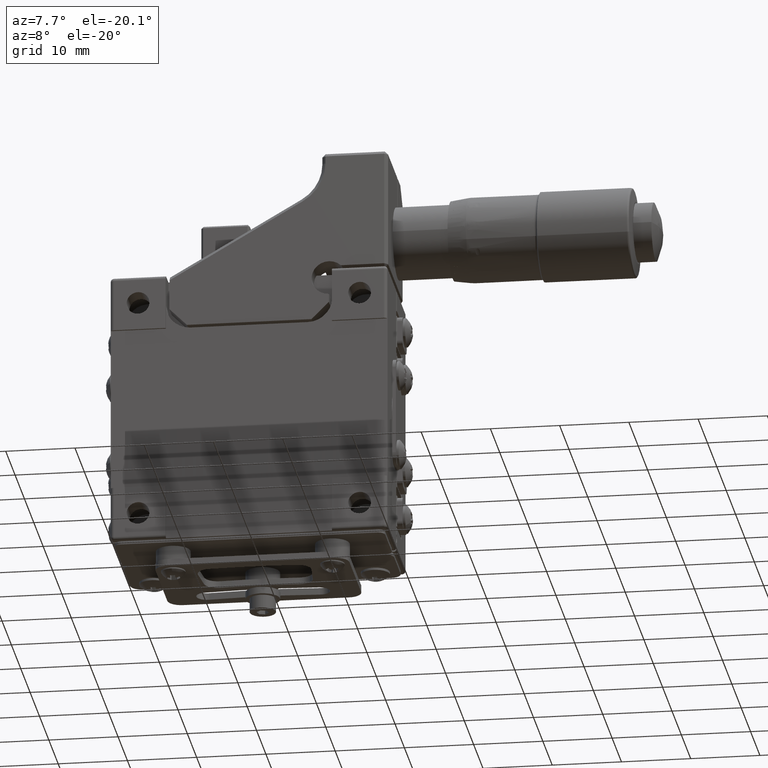
[diagram: clean part render]
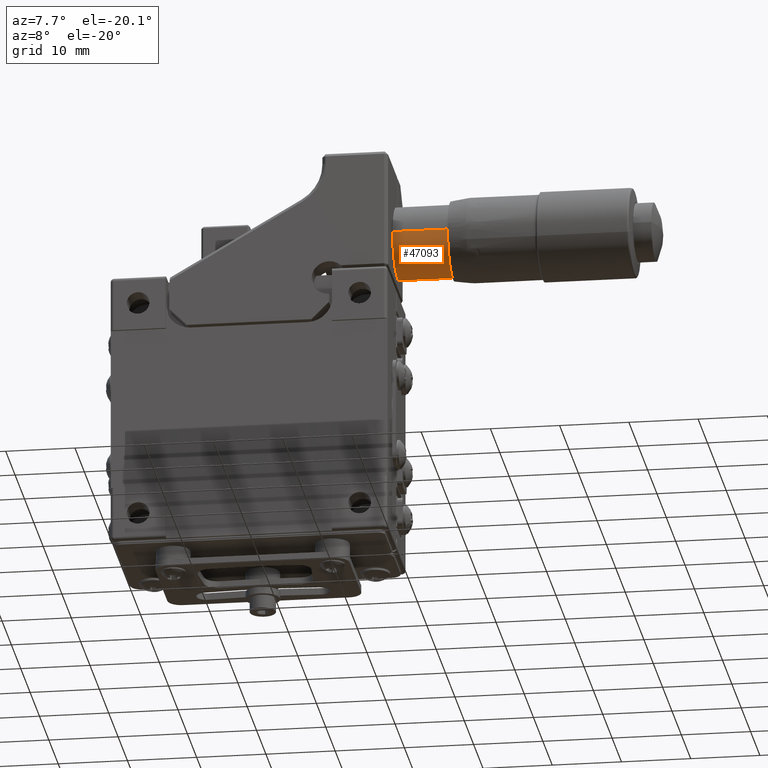
[diagram: same view with one face highlighted and labeled with its STEP entity id]
A machine part, auxiliary view. The second image highlights one B-rep face of the part: STEP entity #47093.
In plain terms, the highlighted cylindrical surface (partial cylindrical patch) has radius 5.25 mm, axis along (1, 0, -0).
Its self-contained STEP definition (entity closure, byte-faithful):
#33 = CIRCLE ( 'NONE', #4797, 5.250000000000000000 ) ;
#227 = EDGE_CURVE ( 'NONE', #22607, #8380, #13490, .T. ) ;
#265 = CARTESIAN_POINT ( 'NONE',  ( 23.45677601469919793, 5.289889676054009726, 23.37938096219945194 ) ) ;
#317 = ORIENTED_EDGE ( 'NONE', *, *, #37757, .T. ) ;
#339 = VECTOR ( 'NONE', #38864, 1000.000000000000000 ) ;
#519 = CARTESIAN_POINT ( 'NONE',  ( 23.78020444100825159, 5.563145795716739173, 23.65647861065389890 ) ) ;
#531 = CARTESIAN_POINT ( 'NONE',  ( 24.34558905639284987, 6.937145710750930228, 27.00175429356615098 ) ) ;
#553 = CARTESIAN_POINT ( 'NONE',  ( 18.06724558356724941, 5.717791847637850644, 23.83313230379275183 ) ) ;
#555 = CARTESIAN_POINT ( 'NONE',  ( 23.28896309203739889, 5.299037404333759582, 23.38801381120405054 ) ) ;
#587 = CARTESIAN_POINT ( 'NONE',  ( 23.52135692592975147, 5.735722256674949726, 23.85468142917499890 ) ) ;
#795 = CARTESIAN_POINT ( 'NONE',  ( 23.44558905639290103, 6.937145710750930228, 27.00175429356619716 ) ) ;
#801 = AXIS2_PLACEMENT_3D ( 'NONE', #26441, #41369, #18289 ) ;
#807 = CARTESIAN_POINT ( 'NONE',  ( 18.24369826059479749, 5.820301678860720251, 23.95962380368979794 ) ) ;
#863 = EDGE_CURVE ( 'NONE', #15339, #11574, #6073, .T. ) ;
#1003 = LINE ( 'NONE', #46460, #17576 ) ;
#1032 = CARTESIAN_POINT ( 'NONE',  ( 23.07953253322079945, 5.755740210196899298, 23.87890023980475007 ) ) ;
#1052 = CARTESIAN_POINT ( 'NONE',  ( 16.89558905639290032, 1.690954773869335126, 27.20170592217080241 ) ) ;
#1055 = CARTESIAN_POINT ( 'NONE',  ( 17.99101964955259803, 5.554083376403719186, 23.64659158344040080 ) ) ;
#1133 = CARTESIAN_POINT ( 'NONE',  ( 24.44558905639284774, 6.486708338444940658, 25.06552995847755128 ) ) ;
#1155 = DIRECTION ( 'NONE',  ( -1.000000000000000000, -1.782563718665835004E-29, 5.884182030513330453E-15 ) ) ;
#1180 = DIRECTION ( 'NONE',  ( 0.000000000000000000, 0.9992744641679190964, -0.03808602449610686697 ) ) ;
#1360 = FACE_BOUND ( 'NONE', #31370, .T. ) ;
#1427 = CARTESIAN_POINT ( 'NONE',  ( 17.99182837006539870, 5.274930975862210047, 23.36534971337189859 ) ) ;
#1504 = ORIENTED_EDGE ( 'NONE', *, *, #29681, .T. ) ;
#1569 = VECTOR ( 'NONE', #10331, 1000.000000000000000 ) ;
#1597 = CARTESIAN_POINT ( 'NONE',  ( 22.99558905639284845, 5.619620145561650126, 23.71916541310759641 ) ) ;
#1643 = CARTESIAN_POINT ( 'NONE',  ( 23.77694753595384114, 5.603925028483028647, 23.70145536615647686 ) ) ;
#1656 = CARTESIAN_POINT ( 'NONE',  ( 23.26121405639284845, 5.304444132582569083, 23.39313733876999990 ) ) ;
#1758 = CARTESIAN_POINT ( 'NONE',  ( 23.32587751793129982, 5.069086367334810106, 23.18290921952070249 ) ) ;
#1840 = CARTESIAN_POINT ( 'NONE',  ( 18.44558905639289748, 6.937145710750930228, 27.00175429356619716 ) ) ;
#2010 = DIRECTION ( 'NONE',  ( 1.000000000000000000, -2.239425046727875360E-16, -5.875646758148700168E-15 ) ) ;
#2048 = VERTEX_POINT ( 'NONE', #2123 ) ;
#2120 = CARTESIAN_POINT ( 'NONE',  ( 23.77944949786196815, 5.585008868517640224, 23.68035803692791319 ) ) ;
#2123 = CARTESIAN_POINT ( 'NONE',  ( 18.38140636408515149, 4.949885944044890351, 23.08565591906599934 ) ) ;
#2155 = CARTESIAN_POINT ( 'NONE',  ( 18.15634294792824832, 5.012485617296509766, 23.13598816888229948 ) ) ;
#2297 = ORIENTED_EDGE ( 'NONE', *, *, #37928, .T. ) ;
#2299 = DIRECTION ( 'NONE',  ( 1.000000000000000000, -2.239425046727875360E-16, -5.875646758148700168E-15 ) ) ;
#2387 = CARTESIAN_POINT ( 'NONE',  ( 23.33341211173975083, 5.758550306320059597, 23.88249404614334992 ) ) ;
#2402 = CARTESIAN_POINT ( 'NONE',  ( 18.72669171763260110, 5.687061938436359654, 23.79672079467419721 ) ) ;
#2792 = ORIENTED_EDGE ( 'NONE', *, *, #44413, .T. ) ;
#2882 = CARTESIAN_POINT ( 'NONE',  ( 18.79107458157634980, 5.506819399690189520, 23.59587209677784969 ) ) ;
#2889 = VECTOR ( 'NONE', #24756, 1000.000000000000000 ) ;
#2983 = CARTESIAN_POINT ( 'NONE',  ( 23.36169482562364763, 5.835818686895009932, 23.97950122003004836 ) ) ;
#3087 = CARTESIAN_POINT ( 'NONE',  ( 18.79104741692095004, 5.331719081647779745, 23.41919936998299789 ) ) ;
#3110 = CARTESIAN_POINT ( 'NONE',  ( 20.34558905639285342, 6.486708338444949540, 25.06552995847755128 ) ) ;
#3132 = CARTESIAN_POINT ( 'NONE',  ( 18.79271889287585040, 5.489365799607090146, 23.57753907683935068 ) ) ;
#3284 = VECTOR ( 'NONE', #22546, 1000.000000000000000 ) ;
#3307 = EDGE_CURVE ( 'NONE', #32852, #12943, #4102, .T. ) ;
#3329 = CARTESIAN_POINT ( 'NONE',  ( 23.55950975918075230, 5.408608004285869519, 23.49473502536619662 ) ) ;
#3372 = DIRECTION ( 'NONE',  ( -1.000000000000000000, 2.307564992963850028E-30, 5.947623346206200260E-15 ) ) ;
#3488 = CARTESIAN_POINT ( 'NONE',  ( 16.89658905639285180, 6.940716680430920604, 27.15170667802524918 ) ) ;
#3516 = CARTESIAN_POINT ( 'NONE',  ( 23.52857190186670167, 5.300615583610110093, 23.38949715309509969 ) ) ;
#3563 = CARTESIAN_POINT ( 'NONE',  ( 23.52754685517545141, 5.396053240556890174, 23.48218658178119966 ) ) ;
#3659 = EDGE_CURVE ( 'NONE', #45516, #47078, #5018, .T. ) ;
#3737 = ORIENTED_EDGE ( 'NONE', *, *, #46312, .T. ) ;
#3872 = AXIS2_PLACEMENT_3D ( 'NONE', #49202, #19376, #19618 ) ;
#4039 = EDGE_CURVE ( 'NONE', #27939, #17849, #37276, .T. ) ;
#4053 = VERTEX_POINT ( 'NONE', #23070 ) ;
#4102 = B_SPLINE_CURVE_WITH_KNOTS ( 'NONE', 3,
 ( #22942, #33898, #18513, #38115, #19245, #11794, #15511, #587, #8066, #30399, #34142, #10819, #19474, #23184, #45795, #41116, #7095, #15273, #4312 ),
 .UNSPECIFIED., .F., .F.,
 ( 4, 2, 2, 2, 2, 2, 1, 2, 2, 4 ),
 ( 0.000000000000000000, 0.06249999999999249906, 0.1249999999999850120, 0.2499999999999920064, 0.4999999999999899525, 0.7499999999999890088, 0.8124999999999860112, 0.8437500000000000000, 0.8750000000000000000, 1.000000000000000000 ),
 .UNSPECIFIED. ) ;
#4240 = CARTESIAN_POINT ( 'NONE',  ( 23.77763940290675393, 5.525179733464120169, 23.61539530819050015 ) ) ;
#4312 = CARTESIAN_POINT ( 'NONE',  ( 23.67251213331595139, 5.560060112899369855, 23.65311128830655107 ) ) ;
#4372 = EDGE_CURVE ( 'NONE', #19408, #38668, #18798, .T. ) ;
#4429 = ORIENTED_EDGE ( 'NONE', *, *, #9612, .T. ) ;
#4480 = CARTESIAN_POINT ( 'NONE',  ( 23.40256021023899891, 5.287493202660889402, 23.37712603279389967 ) ) ;
#4559 = CARTESIAN_POINT ( 'NONE',  ( 23.27101811025384848, 5.385727631877720079, 23.47193981979990340 ) ) ;
#4665 = CARTESIAN_POINT ( 'NONE',  ( 18.63494893333809799, 5.029091470839650135, 23.14954038271840275 ) ) ;
#4765 = CARTESIAN_POINT ( 'NONE',  ( 21.34558905639289961, 6.937145710750930228, 27.00175429356619716 ) ) ;
#4788 = DIRECTION ( 'NONE',  ( 1.000000000000000000, -2.239425046727875360E-16, -5.875646758148700168E-15 ) ) ;
#4797 = AXIS2_PLACEMENT_3D ( 'NONE', #6478, #48448, #29551 ) ;
#4852 = DIRECTION ( 'NONE',  ( 0.000000000000000000, -1.000000000000000000, 0.000000000000000000 ) ) ;
#4899 = CARTESIAN_POINT ( 'NONE',  ( 23.10328136408515221, 5.619620145561650126, 23.71916541310755022 ) ) ;
#4916 = CARTESIAN_POINT ( 'NONE',  ( 18.34326342323839754, 4.951149511358879707, 23.08665608867815067 ) ) ;
#5018 = LINE ( 'NONE', #4765, #38551 ) ;
#5084 = CARTESIAN_POINT ( 'NONE',  ( 23.15969162049540131, 5.278941527085650343, 23.36388739353439803 ) ) ;
#5136 = CARTESIAN_POINT ( 'NONE',  ( 23.32587751793129982, 5.069086367334810106, 23.18290921952070249 ) ) ;
#5155 = VERTEX_POINT ( 'NONE', #20123 ) ;
#5351 = ORIENTED_EDGE ( 'NONE', *, *, #27471, .F. ) ;
#5352 = FACE_BOUND ( 'NONE', #36145, .T. ) ;
#5397 = ORIENTED_EDGE ( 'NONE', *, *, #11442, .T. ) ;
#5415 = CARTESIAN_POINT ( 'NONE',  ( 17.98043980824084898, 5.391738008381330438, 23.47768609248910110 ) ) ;
#5421 = CARTESIAN_POINT ( 'NONE',  ( 18.67973535482265035, 5.070512391442050237, 23.18407989292239790 ) ) ;
#5589 = EDGE_LOOP ( 'NONE', ( #13391, #9751, #47807, #29669 ) ) ;
#5629 = CARTESIAN_POINT ( 'NONE',  ( 23.36169482562364763, 5.835818686895009932, 23.97950122003004836 ) ) ;
#5825 = LINE ( 'NONE', #1597, #339 ) ;
#5847 = CARTESIAN_POINT ( 'NONE',  ( 18.34558905639284987, 6.937145710750930228, 27.00175429356619716 ) ) ;
#5851 = CARTESIAN_POINT ( 'NONE',  ( 22.34558905639284632, 1.690954773869335126, 27.20170592217075267 ) ) ;
#5861 = EDGE_CURVE ( 'NONE', #18559, #6262, #10969, .T. ) ;
#5865 = AXIS2_PLACEMENT_3D ( 'NONE', #20441, #4788, #23654 ) ;
#5883 = CARTESIAN_POINT ( 'NONE',  ( 22.34558905639284632, 6.937145710750930228, 27.00175429356619716 ) ) ;
#5901 = CARTESIAN_POINT ( 'NONE',  ( 18.13134905936610153, 5.029977404075429703, 23.15034123009300160 ) ) ;
#6013 = DIRECTION ( 'NONE',  ( -1.000000000000000000, -1.782563718665835004E-29, 5.884182030513330453E-15 ) ) ;
#6034 = ORIENTED_EDGE ( 'NONE', *, *, #31582, .F. ) ;
#6073 = CIRCLE ( 'NONE', #6890, 5.250000000000000888 ) ;
#6139 = CARTESIAN_POINT ( 'NONE',  ( 18.73326914127765264, 5.677706815678059016, 23.78577632846729983 ) ) ;
#6262 = VERTEX_POINT ( 'NONE', #26822 ) ;
#6340 = CARTESIAN_POINT ( 'NONE',  ( 18.77946615261285146, 5.262396506522959427, 23.35367083740920080 ) ) ;
#6387 = CARTESIAN_POINT ( 'NONE',  ( 18.59615279022359857, 5.792394080578749715, 23.92439059890885034 ) ) ;
#6478 = CARTESIAN_POINT ( 'NONE',  ( 22.44558905639289748, 1.690954773869335126, 27.20170592217075267 ) ) ;
#6535 = ORIENTED_EDGE ( 'NONE', *, *, #4372, .T. ) ;
#6598 = VERTEX_POINT ( 'NONE', #47695 ) ;
#6644 = EDGE_LOOP ( 'NONE', ( #31465, #2297, #40890, #5351 ) ) ;
#6822 = CARTESIAN_POINT ( 'NONE',  ( 23.67251213331595139, 5.560060112899369855, 23.65311128830655107 ) ) ;
#6869 = CARTESIAN_POINT ( 'NONE',  ( 18.79558905639284916, 5.420071184044850554, 23.50627755737194846 ) ) ;
#6890 = AXIS2_PLACEMENT_3D ( 'NONE', #31922, #28445, #8845 ) ;
#6895 = CIRCLE ( 'NONE', #36247, 5.250000000000000000 ) ;
#7056 = CIRCLE ( 'NONE', #3872, 5.250000000000004441 ) ;
#7095 = CARTESIAN_POINT ( 'NONE',  ( 23.67017106141915050, 5.590068086584659923, 23.68607732298434954 ) ) ;
#7165 = CIRCLE ( 'NONE', #37293, 5.250000000000000000 ) ;
#7192 = EDGE_LOOP ( 'NONE', ( #9737, #21418, #29081, #48776 ) ) ;
#7417 = AXIS2_PLACEMENT_3D ( 'NONE', #34162, #26681, #38134 ) ;
#7498 = B_SPLINE_CURVE_WITH_KNOTS ( 'NONE', 3,
 ( #5136, #28477, #43131, #1656 ),
 .UNSPECIFIED., .F., .F.,
 ( 4, 4 ),
 ( 0.000000000000000000, 1.000000000000000000 ),
 .UNSPECIFIED. ) ;
#7499 = CARTESIAN_POINT ( 'NONE',  ( 23.76540507260534696, 5.480379353258279629, 23.56810850723585204 ) ) ;
#7538 = CARTESIAN_POINT ( 'NONE',  ( 18.38140636408520123, 5.835818686895009932, 23.97950122003004836 ) ) ;
#7747 = CARTESIAN_POINT ( 'NONE',  ( 23.41781671646059948, 5.287733781616739570, 23.37735226717385117 ) ) ;
#7937 = VECTOR ( 'NONE', #22268, 1000.000000000000000 ) ;
#7959 = LINE ( 'NONE', #22372, #14805 ) ;
#7991 = CARTESIAN_POINT ( 'NONE',  ( 23.73636563050564874, 5.427513880047809991, 23.51374053871964875 ) ) ;
#8066 = CARTESIAN_POINT ( 'NONE',  ( 23.55455627761135062, 5.721574142831560295, 23.83756220789814861 ) ) ;
#8377 = ORIENTED_EDGE ( 'NONE', *, *, #28513, .F. ) ;
#8380 = VERTEX_POINT ( 'NONE', #9841 ) ;
#8480 = ORIENTED_EDGE ( 'NONE', *, *, #39571, .T. ) ;
#8515 = VERTEX_POINT ( 'NONE', #48808 ) ;
#8554 = CARTESIAN_POINT ( 'NONE',  ( 23.36098206408059852, 5.376495994954619384, 23.46281756679924868 ) ) ;
#8616 = CARTESIAN_POINT ( 'NONE',  ( 23.69804367146982216, 5.735863186969532457, 23.85480111770216638 ) ) ;
#8653 = CARTESIAN_POINT ( 'NONE',  ( 17.98668238773064942, 5.309002002021870226, 23.39740765493554875 ) ) ;
#8660 = CARTESIAN_POINT ( 'NONE',  ( 18.55303231359435046, 4.981926728250019920, 23.11118453215449975 ) ) ;
#8776 = CARTESIAN_POINT ( 'NONE',  ( 20.34558905639285342, 6.937145710750930228, 27.00175429356615098 ) ) ;
#8845 = DIRECTION ( 'NONE',  ( 0.000000000000000000, 0.9999546488688688672, 0.009523665551529269038 ) ) ;
#8884 = ORIENTED_EDGE ( 'NONE', *, *, #29289, .T. ) ;
#8901 = CARTESIAN_POINT ( 'NONE',  ( 18.03670959010259978, 5.141584140932299540, 23.24497592652269873 ) ) ;
#9000 = CARTESIAN_POINT ( 'NONE',  ( 23.01522760397604728, 5.677772278705179865, 23.78583551321204936 ) ) ;
#9078 = FACE_BOUND ( 'NONE', #9306, .T. ) ;
#9106 = CARTESIAN_POINT ( 'NONE',  ( 23.76844957461390351, 5.636150263130284443, 23.73781754061384319 ) ) ;
#9120 = ORIENTED_EDGE ( 'NONE', *, *, #29457, .T. ) ;
#9127 = CARTESIAN_POINT ( 'NONE',  ( 19.44558905639285129, 6.486708338444940658, 25.06552995847760101 ) ) ;
#9220 = VERTEX_POINT ( 'NONE', #29846 ) ;
#9271 = CARTESIAN_POINT ( 'NONE',  ( 17.98585416595799913, 5.521370916630820247, 23.61135259567905109 ) ) ;
#9306 = EDGE_LOOP ( 'NONE', ( #317, #23424, #25515, #35150 ) ) ;
#9374 = CARTESIAN_POINT ( 'NONE',  ( 23.14137710432449779, 5.685710220525949765, 23.79515258192074967 ) ) ;
#9422 = VERTEX_POINT ( 'NONE', #26842 ) ;
#9612 = EDGE_CURVE ( 'NONE', #28670, #17849, #33, .T. ) ;
#9646 = CARTESIAN_POINT ( 'NONE',  ( 17.99797431945545156, 5.241168087542649623, 23.33389231324834867 ) ) ;
#9737 = ORIENTED_EDGE ( 'NONE', *, *, #22652, .F. ) ;
#9751 = ORIENTED_EDGE ( 'NONE', *, *, #15446, .F. ) ;
#9841 = CARTESIAN_POINT ( 'NONE',  ( 19.34558905639285342, 6.486708338444940658, 25.06552995847760101 ) ) ;
#9877 = CARTESIAN_POINT ( 'NONE',  ( 18.79309068520640125, 5.484651562133749714, 23.57260461165904886 ) ) ;
#9972 = CARTESIAN_POINT ( 'NONE',  ( 21.44558905639290103, 1.690954773869335126, 27.20170592217075267 ) ) ;
#10062 = CARTESIAN_POINT ( 'NONE',  ( 18.76866243877675089, 5.221752901497730193, 23.31628579314640248 ) ) ;
#10097 = CARTESIAN_POINT ( 'NONE',  ( 23.10877952375430056, 5.634730652595280276, 23.73627324775959835 ) ) ;
#10111 = CARTESIAN_POINT ( 'NONE',  ( 18.79489832927080073, 5.450364911648720501, 23.53705779128064890 ) ) ;
#10299 = CARTESIAN_POINT ( 'NONE',  ( 18.79558905639284916, 5.420071184044850554, 23.50627755737194846 ) ) ;
#10312 = CARTESIAN_POINT ( 'NONE',  ( 23.44157218277834787, 5.378967323543909274, 23.46525524827420028 ) ) ;
#10331 = DIRECTION ( 'NONE',  ( -1.000000000000000000, -1.782563718665835004E-29, 5.884182030513330453E-15 ) ) ;
#10388 = EDGE_CURVE ( 'NONE', #28670, #25449, #16310, .T. ) ;
#10681 = ORIENTED_EDGE ( 'NONE', *, *, #3659, .F. ) ;
#10791 = CARTESIAN_POINT ( 'NONE',  ( 23.67224531399750020, 5.552370442750300228, 23.64472708360050390 ) ) ;
#10819 = CARTESIAN_POINT ( 'NONE',  ( 23.65473570768559597, 5.632402840398870403, 23.73362733872725272 ) ) ;
#10837 = B_SPLINE_CURVE_WITH_KNOTS ( 'NONE', 3,
 ( #42311, #8554, #46039, #23181, #4559, #42816, #26910, #34864, #11790, #38849 ),
 .UNSPECIFIED., .F., .F.,
 ( 4, 1, 1, 2, 2, 4 ),
 ( 0.000000000000000000, 0.2499999999999960032, 0.3750000000000144884, 0.4375000000000000000, 0.4999999999999909517, 1.000000000000000000 ),
 .UNSPECIFIED. ) ;
#10867 = AXIS2_PLACEMENT_3D ( 'NONE', #37413, #3372, #18530 ) ;
#10969 = B_SPLINE_CURVE_WITH_KNOTS ( 'NONE', 3,
 ( #7538, #18968, #45519, #807, #30863, #34585, #15242, #15979, #30372, #553, #12017, #46011, #27131, #34835, #46264, #43284, #16725, #1055, #43534, #27633, #9271, #28625, #23912, #39815 ),
 .UNSPECIFIED., .F., .F.,
 ( 4, 2, 2, 2, 2, 1, 2, 2, 2, 2, 2, 1, 4 ),
 ( 0.000000000000000000, 0.1250000000000000000, 0.2500000000000000000, 0.3750000000000000000, 0.4375000000000074940, 0.5000000000000129896, 0.5625000000000179856, 0.6250000000000229816, 0.7500000000000229816, 0.7812500000000179856, 0.8125000000000129896, 0.8750000000000119904, 1.000000000000000000 ),
 .UNSPECIFIED. ) ;
#10975 = CARTESIAN_POINT ( 'NONE',  ( 21.44558905639285484, 6.486708338444949540, 25.06552995847750154 ) ) ;
#11086 = B_SPLINE_CURVE_WITH_KNOTS ( 'NONE', 3,
 ( #41999, #7747, #22399, #265, #37556, #11971, #41517, #3516, #30575, #48749, #45969, #18449, #7991, #33814, #34544, #7499, #23114, #27089, #38281, #4240, #29847, #42242 ),
 .UNSPECIFIED., .F., .F.,
 ( 4, 1, 2, 2, 2, 2, 2, 2, 1, 2, 2, 4 ),
 ( 0.000000000000000000, 0.06249999999996199568, 0.09374999999995201061, 0.1249999999999421990, 0.2499999999999329980, 0.4999999999999339972, 0.6249999999999340528, 0.7499999999999350520, 0.8124999999999430456, 0.8437499999999510392, 0.8749999999999580336, 1.000000000000000000 ),
 .UNSPECIFIED. ) ;
#11220 = CARTESIAN_POINT ( 'NONE',  ( 18.34558905639284987, 6.937145710750930228, 27.00175429356619716 ) ) ;
#11397 = CIRCLE ( 'NONE', #5865, 5.250000000000000000 ) ;
#11442 = EDGE_CURVE ( 'NONE', #41745, #40393, #7498, .T. ) ;
#11481 = CARTESIAN_POINT ( 'NONE',  ( 22.44558905639284774, 6.486708338444949540, 25.06552995847755128 ) ) ;
#11517 = CARTESIAN_POINT ( 'NONE',  ( 23.35142124693670240, 5.289643035506229829, 23.37914710156034914 ) ) ;
#11574 = VERTEX_POINT ( 'NONE', #40631 ) ;
#11608 = CARTESIAN_POINT ( 'NONE',  ( 23.73405059485439850, 5.069086367334810106, 23.18290921952064920 ) ) ;
#11624 = B_SPLINE_CURVE_WITH_KNOTS ( 'NONE', 3,
 ( #32220, #5415, #31976, #42657, #8653, #35204, #13366, #1427, #24022, #9646, #43152, #43651, #42912, #8901, #16594, #24770, #39927, #12874, #16843, #5901, #2155, #17331, #23778, #20065, #32467, #31728, #4916, #20311, #16337 ),
 .UNSPECIFIED., .F., .F.,
 ( 4, 2, 1, 1, 2, 2, 2, 1, 2, 2, 2, 2, 2, 2, 2, 4 ),
 ( 0.000000000000000000, 0.1249999999999726052, 0.1874999999999645006, 0.2187499999999575062, 0.2343749999999590050, 0.2499999999999610034, 0.3749999999999689693, 0.4374999999999739653, 0.4687499999999699685, 0.4999999999999659717, 0.6249999999999730216, 0.6874999999999790168, 0.7499999999999860112, 0.8750000000000000000, 0.9375000000000000000, 1.000000000000000000 ),
 .UNSPECIFIED. ) ;
#11790 = CARTESIAN_POINT ( 'NONE',  ( 23.16861416182144850, 5.406211787023529780, 23.49229434622470336 ) ) ;
#11794 = CARTESIAN_POINT ( 'NONE',  ( 23.44726634559129863, 5.753441172588590113, 23.87624094318305268 ) ) ;
#11949 = CARTESIAN_POINT ( 'NONE',  ( 23.44558905639290103, 6.106883144299340316, 24.36232630203689808 ) ) ;
#11971 = CARTESIAN_POINT ( 'NONE',  ( 23.47206117095209876, 5.291357144720800321, 23.38076308653859670 ) ) ;
#12017 = CARTESIAN_POINT ( 'NONE',  ( 18.05044602814275123, 5.698528273303800518, 23.81015913801834927 ) ) ;
#12060 = VERTEX_POINT ( 'NONE', #531 ) ;
#12249 = DIRECTION ( 'NONE',  ( -1.000000000000000000, 0.000000000000000000, 5.884182030513330453E-15 ) ) ;
#12293 = CARTESIAN_POINT ( 'NONE',  ( 23.11866597946979951, 5.419732759218230278, 23.50593607869055290 ) ) ;
#12357 = CARTESIAN_POINT ( 'NONE',  ( 20.44558905639285129, 6.486708338444940658, 25.06552995847755128 ) ) ;
#12524 = ORIENTED_EDGE ( 'NONE', *, *, #10388, .F. ) ;
#12632 = CARTESIAN_POINT ( 'NONE',  ( 18.45049505652580280, 4.954428476851679974, 23.08925606883044779 ) ) ;
#12703 = CARTESIAN_POINT ( 'NONE',  ( 16.89558905639290032, -3.559045226130664652, 27.20170592217075267 ) ) ;
#12874 = CARTESIAN_POINT ( 'NONE',  ( 18.08616175225260037, 5.070083199743869784, 23.18365955399514888 ) ) ;
#12943 = VERTEX_POINT ( 'NONE', #43018 ) ;
#12976 = CARTESIAN_POINT ( 'NONE',  ( 23.24872480063070057, 5.826416599739940416, 23.96743299280860029 ) ) ;
#13051 = FACE_BOUND ( 'NONE', #5589, .T. ) ;
#13077 = CARTESIAN_POINT ( 'NONE',  ( 23.48759408747753241, 5.835067125678773614, 23.97853445371584158 ) ) ;
#13202 = ORIENTED_EDGE ( 'NONE', *, *, #29836, .T. ) ;
#13303 = FACE_BOUND ( 'NONE', #18136, .T. ) ;
#13366 = CARTESIAN_POINT ( 'NONE',  ( 17.99089543740879904, 5.280468734635469730, 23.37053065827250364 ) ) ;
#13391 = ORIENTED_EDGE ( 'NONE', *, *, #46970, .F. ) ;
#13460 = DIRECTION ( 'NONE',  ( 0.000000000000000000, 0.9992744641679190964, -0.03808602449610686697 ) ) ;
#13470 = CARTESIAN_POINT ( 'NONE',  ( 23.33606302679380207, 5.835506975621029824, 23.97910025208099682 ) ) ;
#13490 = LINE ( 'NONE', #21885, #28526 ) ;
#13522 = DIRECTION ( 'NONE',  ( 1.000000000000000000, 1.782563718665835004E-29, -5.884182030513330453E-15 ) ) ;
#13643 = EDGE_CURVE ( 'NONE', #46239, #48109, #5825, .T. ) ;
#13689 = CARTESIAN_POINT ( 'NONE',  ( 23.36794482562364905, 5.759147816275490328, 23.88322654605309836 ) ) ;
#13775 = CIRCLE ( 'NONE', #21697, 5.250000000000000888 ) ;
#13792 = CARTESIAN_POINT ( 'NONE',  ( 23.47038166592300001, 5.382631975830100224, 23.46887515084534925 ) ) ;
#13845 = VERTEX_POINT ( 'NONE', #33842 ) ;
#13891 = DIRECTION ( 'NONE',  ( 0.000000000000000000, 0.9992744641679190964, -0.03808602449610686697 ) ) ;
#14034 = CARTESIAN_POINT ( 'NONE',  ( 23.45674067716645084, 5.380740935038120121, 23.46700664033735251 ) ) ;
#14057 = CIRCLE ( 'NONE', #20395, 5.250000000000000000 ) ;
#14081 = CARTESIAN_POINT ( 'NONE',  ( 18.77476784010985256, 5.591705282845560454, 23.68771121893480114 ) ) ;
#14148 = VERTEX_POINT ( 'NONE', #43997 ) ;
#14216 = AXIS2_PLACEMENT_3D ( 'NONE', #43341, #47074, #4852 ) ;
#14229 = AXIS2_PLACEMENT_3D ( 'NONE', #9972, #2010, #13460 ) ;
#14276 = CARTESIAN_POINT ( 'NONE',  ( 18.76220492037050036, 5.203673944709279908, 23.29997078075624728 ) ) ;
#14522 = CARTESIAN_POINT ( 'NONE',  ( 18.78346734734694934, 5.280774666387110017, 23.37078261408085211 ) ) ;
#14564 = CARTESIAN_POINT ( 'NONE',  ( 18.76675978668825095, 5.615227763882160161, 23.71407207285504626 ) ) ;
#14805 = VECTOR ( 'NONE', #18654, 1000.000000000000000 ) ;
#14809 = CARTESIAN_POINT ( 'NONE',  ( 18.79362348488345091, 5.477229969221159678, 23.56485079685375084 ) ) ;
#14821 = CARTESIAN_POINT ( 'NONE',  ( 23.11866597946979951, 5.419732759218230278, 23.50593607869055290 ) ) ;
#14925 = CARTESIAN_POINT ( 'NONE',  ( 22.34558905639284632, 6.486708338444949540, 25.06552995847755128 ) ) ;
#15029 = AXIS2_PLACEMENT_3D ( 'NONE', #15780, #18781, #27188 ) ;
#15039 = AXIS2_PLACEMENT_3D ( 'NONE', #22408, #38791, #38530 ) ;
#15242 = CARTESIAN_POINT ( 'NONE',  ( 18.13043695229539765, 5.772291150746149846, 23.89929069124455197 ) ) ;
#15273 = CARTESIAN_POINT ( 'NONE',  ( 23.67184503265925244, 5.576737771000690458, 23.67129528018510243 ) ) ;
#15339 = VERTEX_POINT ( 'NONE', #3488 ) ;
#15446 = EDGE_CURVE ( 'NONE', #23357, #4053, #7959, .T. ) ;
#15511 = CARTESIAN_POINT ( 'NONE',  ( 23.46695474002494919, 5.749759731486410175, 23.87174247602124666 ) ) ;
#15542 = CARTESIAN_POINT ( 'NONE',  ( 24.44558905639290103, 6.937145710750930228, 27.00175429356615098 ) ) ;
#15600 = CARTESIAN_POINT ( 'NONE',  ( 23.24174290254670083, 4.973953205497189778, 23.10482646361575121 ) ) ;
#15780 = CARTESIAN_POINT ( 'NONE',  ( 18.34558905639284987, 1.690954773869335126, 27.20170592217075267 ) ) ;
#15815 = CIRCLE ( 'NONE', #14229, 5.250000000000000000 ) ;
#15979 = CARTESIAN_POINT ( 'NONE',  ( 18.09671249363369938, 5.746233249407069366, 23.86742867957255143 ) ) ;
#16188 = VERTEX_POINT ( 'NONE', #15542 ) ;
#16307 = CARTESIAN_POINT ( 'NONE',  ( 23.74070398268731452, 5.688601654861819235, 23.79847448612505900 ) ) ;
#16310 = LINE ( 'NONE', #36663, #1569 ) ;
#16337 = CARTESIAN_POINT ( 'NONE',  ( 18.38140636408515149, 4.949885944044890351, 23.08565591906599934 ) ) ;
#16540 = EDGE_CURVE ( 'NONE', #40393, #17896, #40873, .T. ) ;
#16594 = CARTESIAN_POINT ( 'NONE',  ( 18.04309593501559661, 5.130362535289360260, 23.23521760906784905 ) ) ;
#16652 = ORIENTED_EDGE ( 'NONE', *, *, #39633, .F. ) ;
#16688 = VERTEX_POINT ( 'NONE', #43955 ) ;
#16725 = CARTESIAN_POINT ( 'NONE',  ( 17.99231943164759784, 5.560712786076269509, 23.65381012601190136 ) ) ;
#16807 = CARTESIAN_POINT ( 'NONE',  ( 23.58806263339005937, 5.810996888532477200, 23.94688165954975290 ) ) ;
#16843 = CARTESIAN_POINT ( 'NONE',  ( 18.11953789651514768, 5.039460805915860320, 23.15816987841044750 ) ) ;
#17331 = CARTESIAN_POINT ( 'NONE',  ( 18.16848841894179856, 5.005020197889379574, 23.12990395443004843 ) ) ;
#17383 = EDGE_CURVE ( 'NONE', #25449, #27939, #6895, .T. ) ;
#17434 = B_SPLINE_CURVE_WITH_KNOTS ( 'NONE', 3,
 ( #23992, #2120, #1643, #9106, #31692, #16307, #31940, #8616, #39149, #16807, #13077, #5629 ),
 .UNSPECIFIED., .F., .F.,
 ( 4, 2, 2, 2, 2, 4 ),
 ( 0.000000000000000000, 0.1249999999999979461, 0.2499999999999958922, 0.3749999999999938383, 0.4999999999999917843, 1.000000000000000000 ),
 .UNSPECIFIED. ) ;
#17575 = CARTESIAN_POINT ( 'NONE',  ( 18.74668284375070115, 5.656372997765190647, 23.76103372889225085 ) ) ;
#17576 = VECTOR ( 'NONE', #27580, 1000.000000000000000 ) ;
#17660 = EDGE_CURVE ( 'NONE', #35531, #23064, #39442, .T. ) ;
#17757 = ORIENTED_EDGE ( 'NONE', *, *, #863, .F. ) ;
#17849 = VERTEX_POINT ( 'NONE', #21903 ) ;
#17896 = VERTEX_POINT ( 'NONE', #4480 ) ;
#17933 = DIRECTION ( 'NONE',  ( -1.000000000000000000, -1.782563718665835004E-29, 5.884182030513330453E-15 ) ) ;
#18049 = CARTESIAN_POINT ( 'NONE',  ( 18.55070983389899908, 5.811087574015649793, 23.94787646013809734 ) ) ;
#18067 = LINE ( 'NONE', #37429, #7937 ) ;
#18136 = EDGE_LOOP ( 'NONE', ( #32185, #39916, #8480, #31831 ) ) ;
#18184 = DIRECTION ( 'NONE',  ( 0.000000000000000000, 0.9992744641679190964, -0.03808602449610686697 ) ) ;
#18250 = CARTESIAN_POINT ( 'NONE',  ( 18.77417814011855057, 5.241312493612169554, 23.33420768764814923 ) ) ;
#18289 = DIRECTION ( 'NONE',  ( 0.000000000000000000, 0.9992744641679190964, -0.03808602449610686697 ) ) ;
#18299 = CARTESIAN_POINT ( 'NONE',  ( 18.45456603967054932, 5.832406047114049308, 23.97510231791389756 ) ) ;
#18449 = CARTESIAN_POINT ( 'NONE',  ( 23.70985346317100095, 5.397170563073149907, 23.48324829200264929 ) ) ;
#18490 = CARTESIAN_POINT ( 'NONE',  ( 18.79396250939540280, 5.362866612657110288, 23.44934730065089923 ) ) ;
#18513 = CARTESIAN_POINT ( 'NONE',  ( 23.39070943946629910, 5.758554957469639746, 23.88249975833804939 ) ) ;
#18530 = DIRECTION ( 'NONE',  ( 5.947623346206194738E-15, 0.000000000000000000, 1.000000000000000000 ) ) ;
#18559 = VERTEX_POINT ( 'NONE', #45309 ) ;
#18654 = DIRECTION ( 'NONE',  ( -1.000000000000000000, -1.782563718665835004E-29, 5.884182030513330453E-15 ) ) ;
#18662 = DIRECTION ( 'NONE',  ( -1.000000000000000000, -1.782563718665835004E-29, 5.884182030513330453E-15 ) ) ;
#18731 = CARTESIAN_POINT ( 'NONE',  ( 23.50927558502334946, 5.390669129404490612, 23.47683796215019925 ) ) ;
#18781 = DIRECTION ( 'NONE',  ( 1.000000000000000000, -2.239425046727875360E-16, -5.875646758148700168E-15 ) ) ;
#18798 = B_SPLINE_CURVE_WITH_KNOTS ( 'NONE', 3,
 ( #12293, #5084, #35872, #42571 ),
 .UNSPECIFIED., .F., .F.,
 ( 4, 4 ),
 ( 0.000000000000000000, 1.000000000000000000 ),
 .UNSPECIFIED. ) ;
#18968 = CARTESIAN_POINT ( 'NONE',  ( 18.34207448783224947, 5.835410741330079532, 23.97897646167145069 ) ) ;
#18971 = CARTESIAN_POINT ( 'NONE',  ( 23.37524906455769980, 5.288045942378840181, 23.37764581527829932 ) ) ;
#19048 = VECTOR ( 'NONE', #36832, 1000.000000000000000 ) ;
#19245 = CARTESIAN_POINT ( 'NONE',  ( 23.41778972967649963, 5.756872753196759618, 23.88043895729944666 ) ) ;
#19376 = DIRECTION ( 'NONE',  ( 1.000000000000000000, 7.829265901520909590E-17, -5.977322949150299902E-15 ) ) ;
#19407 = LINE ( 'NONE', #48993, #31085 ) ;
#19408 = VERTEX_POINT ( 'NONE', #14821 ) ;
#19474 = CARTESIAN_POINT ( 'NONE',  ( 23.65955216743424927, 5.623155655846360013, 23.72313457529099878 ) ) ;
#19478 = VERTEX_POINT ( 'NONE', #29479 ) ;
#19529 = DIRECTION ( 'NONE',  ( -1.000000000000000000, -1.782563718665835004E-29, 5.884182030513330453E-15 ) ) ;
#19561 = ORIENTED_EDGE ( 'NONE', *, *, #32522, .T. ) ;
#19618 = DIRECTION ( 'NONE',  ( -4.625929269271481378E-15, 0.6434536368505615611, -0.7654850862190494265 ) ) ;
#19643 = VERTEX_POINT ( 'NONE', #12703 ) ;
#19700 = ORIENTED_EDGE ( 'NONE', *, *, #37793, .T. ) ;
#19820 = CARTESIAN_POINT ( 'NONE',  ( 18.69972952108545172, 5.093597007688599909, 23.20361207259480096 ) ) ;
#19923 = DIRECTION ( 'NONE',  ( 1.000000000000000000, 1.782563718665835004E-29, -5.884182030513330453E-15 ) ) ;
#19958 = CARTESIAN_POINT ( 'NONE',  ( 24.44558905639284774, 6.486708338444949540, 25.06552995847755128 ) ) ;
#20048 = CARTESIAN_POINT ( 'NONE',  ( 23.10555918821184918, 5.626145407458899683, 23.72652658245799984 ) ) ;
#20065 = CARTESIAN_POINT ( 'NONE',  ( 18.24361277740214859, 4.970020587297289794, 23.10166459875025069 ) ) ;
#20072 = EDGE_CURVE ( 'NONE', #20698, #34923, #17434, .T. ) ;
#20115 = EDGE_LOOP ( 'NONE', ( #12524, #4429, #31045, #22309 ) ) ;
#20123 = CARTESIAN_POINT ( 'NONE',  ( 23.73405059485439850, 4.973953205497189778, 23.10482646361575121 ) ) ;
#20311 = CARTESIAN_POINT ( 'NONE',  ( 18.36117153512935118, 4.950152195992080451, 23.08586672718769961 ) ) ;
#20395 = AXIS2_PLACEMENT_3D ( 'NONE', #27016, #39196, #1180 ) ;
#20441 = CARTESIAN_POINT ( 'NONE',  ( 19.44558905639290103, 1.690954773869335126, 27.20170592217075267 ) ) ;
#20562 = EDGE_CURVE ( 'NONE', #43501, #41745, #47779, .T. ) ;
#20574 = ORIENTED_EDGE ( 'NONE', *, *, #20072, .T. ) ;
#20659 = CARTESIAN_POINT ( 'NONE',  ( 23.31299811960539969, 5.834306520290999387, 23.97755519652895018 ) ) ;
#20683 = CARTESIAN_POINT ( 'NONE',  ( 23.24174290254670083, 4.973953205497189778, 23.10482646361575121 ) ) ;
#20698 = VERTEX_POINT ( 'NONE', #519 ) ;
#20759 = DIRECTION ( 'NONE',  ( 1.000000000000000000, -2.239425046727875360E-16, -5.875646758148700168E-15 ) ) ;
#21144 = CARTESIAN_POINT ( 'NONE',  ( 23.14594142806910071, 5.795831016987531115, 23.92855617386585365 ) ) ;
#21330 = CARTESIAN_POINT ( 'NONE',  ( 19.34558905639285342, 1.690954773869335126, 27.20170592217075267 ) ) ;
#21406 = DIRECTION ( 'NONE',  ( 1.000000000000000000, -2.239425046727875360E-16, -5.875646758148700168E-15 ) ) ;
#21418 = ORIENTED_EDGE ( 'NONE', *, *, #17660, .T. ) ;
#21508 = CARTESIAN_POINT ( 'NONE',  ( 23.21795840791880039, 5.733476270342180214, 23.85195371795455088 ) ) ;
#21697 = AXIS2_PLACEMENT_3D ( 'NONE', #1052, #12249, #31356 ) ;
#21714 = CARTESIAN_POINT ( 'NONE',  ( 23.40628730730425033, 5.376526343016299947, 23.46284747642850022 ) ) ;
#21748 = CARTESIAN_POINT ( 'NONE',  ( 23.12676289071415070, 5.668406620064499357, 23.77496497051425095 ) ) ;
#21885 = CARTESIAN_POINT ( 'NONE',  ( 19.44558905639285129, 6.486708338444940658, 25.06552995847760101 ) ) ;
#21903 = CARTESIAN_POINT ( 'NONE',  ( 22.44558905639289748, 6.937145710750930228, 27.00175429356619716 ) ) ;
#21945 = VECTOR ( 'NONE', #6013, 1000.000000000000000 ) ;
#21958 = CARTESIAN_POINT ( 'NONE',  ( 23.66463575236579686, 5.510215797534230298, 23.59947359117969867 ) ) ;
#22005 = CARTESIAN_POINT ( 'NONE',  ( 18.75198934213515045, 5.646653861269229857, 23.74986629355199952 ) ) ;
#22020 = CARTESIAN_POINT ( 'NONE',  ( 23.10328136408515221, 5.619620145561650126, 23.71916541310755022 ) ) ;
#22205 = CARTESIAN_POINT ( 'NONE',  ( 18.79173066785679680, 5.338247725404369426, 23.42549423745030168 ) ) ;
#22227 = CIRCLE ( 'NONE', #801, 5.250000000000000000 ) ;
#22268 = DIRECTION ( 'NONE',  ( 1.000000000000000000, 1.782563718665835004E-29, -5.884182030513330453E-15 ) ) ;
#22309 = ORIENTED_EDGE ( 'NONE', *, *, #17383, .F. ) ;
#22323 = LINE ( 'NONE', #37479, #3284 ) ;
#22331 = CIRCLE ( 'NONE', #27101, 5.250000000000000000 ) ;
#22372 = CARTESIAN_POINT ( 'NONE',  ( 18.44558905639285129, 6.106883144299340316, 24.36232630203689808 ) ) ;
#22399 = CARTESIAN_POINT ( 'NONE',  ( 23.43875569852834673, 5.288504610693919084, 23.37807711674879840 ) ) ;
#22408 = CARTESIAN_POINT ( 'NONE',  ( 23.44558905639290103, 1.690954773869335126, 27.20170592217075267 ) ) ;
#22496 = VECTOR ( 'NONE', #18662, 1000.000000000000000 ) ;
#22546 = DIRECTION ( 'NONE',  ( -1.000000000000000000, -1.782563718665835004E-29, 5.884182030513330453E-15 ) ) ;
#22607 = VERTEX_POINT ( 'NONE', #9127 ) ;
#22627 = DIRECTION ( 'NONE',  ( 1.000000000000000000, 1.782563718665835004E-29, -5.884182030513330453E-15 ) ) ;
#22652 = EDGE_CURVE ( 'NONE', #35531, #33687, #46371, .T. ) ;
#22910 = EDGE_CURVE ( 'NONE', #6598, #45516, #22227, .T. ) ;
#22913 = CARTESIAN_POINT ( 'NONE',  ( 23.31225065903175420, 5.294981590537360283, 23.38418074343955055 ) ) ;
#22942 = CARTESIAN_POINT ( 'NONE',  ( 23.36794482562364905, 5.759147816275490328, 23.88322654605309836 ) ) ;
#22948 = CIRCLE ( 'NONE', #15039, 5.250000000000000000 ) ;
#23064 = VERTEX_POINT ( 'NONE', #42829 ) ;
#23070 = CARTESIAN_POINT ( 'NONE',  ( 18.34558905639284987, 6.106883144299340316, 24.36232630203689808 ) ) ;
#23114 = CARTESIAN_POINT ( 'NONE',  ( 23.76965802367999814, 5.493413874784839557, 23.58178242217590181 ) ) ;
#23128 = VECTOR ( 'NONE', #19529, 1000.000000000000000 ) ;
#23147 = VERTEX_POINT ( 'NONE', #1840 ) ;
#23181 = CARTESIAN_POINT ( 'NONE',  ( 23.28804875598075341, 5.383166485600679785, 23.46940346086985230 ) ) ;
#23184 = CARTESIAN_POINT ( 'NONE',  ( 23.66330779913764815, 5.613456927468489788, 23.71222154650114788 ) ) ;
#23278 = CARTESIAN_POINT ( 'NONE',  ( 18.38140636408515149, 4.949885944044890351, 23.08565591906599934 ) ) ;
#23357 = VERTEX_POINT ( 'NONE', #48593 ) ;
#23405 = CIRCLE ( 'NONE', #27387, 5.250000000000000000 ) ;
#23424 = ORIENTED_EDGE ( 'NONE', *, *, #5861, .T. ) ;
#23532 = CARTESIAN_POINT ( 'NONE',  ( 18.60947123683645188, 5.011474070333980180, 23.13513325609104854 ) ) ;
#23654 = DIRECTION ( 'NONE',  ( 0.000000000000000000, 0.9992744641679190964, -0.03808602449610686697 ) ) ;
#23778 = CARTESIAN_POINT ( 'NONE',  ( 18.21320570445849896, 4.981612073726790157, 23.11092627378785025 ) ) ;
#23786 = CARTESIAN_POINT ( 'NONE',  ( 18.72577189380794849, 5.130770820281770561, 23.23554652460694570 ) ) ;
#23912 = CARTESIAN_POINT ( 'NONE',  ( 17.98044813092865013, 5.449314555993970188, 23.53578751601789776 ) ) ;
#23966 = FACE_BOUND ( 'NONE', #20115, .T. ) ;
#23992 = CARTESIAN_POINT ( 'NONE',  ( 23.78020444100825159, 5.563145795716739173, 23.65647861065389890 ) ) ;
#24022 = CARTESIAN_POINT ( 'NONE',  ( 17.99215884324059900, 5.273013950788129733, 23.36355852547400147 ) ) ;
#24102 = EDGE_CURVE ( 'NONE', #8380, #9422, #22331, .T. ) ;
#24274 = CARTESIAN_POINT ( 'NONE',  ( 18.66905283041140251, 5.059641995894379463, 23.17496754702625239 ) ) ;
#24453 = LINE ( 'NONE', #35382, #38743 ) ;
#24625 = CARTESIAN_POINT ( 'NONE',  ( 23.36169482562364763, 5.835818686895009932, 23.97950122003004836 ) ) ;
#24756 = DIRECTION ( 'NONE',  ( 1.000000000000000000, 1.782563718665835004E-29, -5.884182030513330453E-15 ) ) ;
#24770 = CARTESIAN_POINT ( 'NONE',  ( 18.04569847588030029, 5.125991772643180511, 23.23142949411419877 ) ) ;
#24958 = DIRECTION ( 'NONE',  ( 0.000000000000000000, 0.9992744641679190964, -0.03808602449610686697 ) ) ;
#24981 = CARTESIAN_POINT ( 'NONE',  ( 23.17028830625740099, 5.708751907727400265, 23.82236562437024929 ) ) ;
#25061 = VERTEX_POINT ( 'NONE', #795 ) ;
#25175 = AXIS2_PLACEMENT_3D ( 'NONE', #43052, #2299, #28635 ) ;
#25193 = CARTESIAN_POINT ( 'NONE',  ( 18.78691098724490161, 5.299509364460190497, 23.38839038037134799 ) ) ;
#25242 = CARTESIAN_POINT ( 'NONE',  ( 18.79408161810425071, 5.468751336235170513, 23.55604675540875093 ) ) ;
#25449 = VERTEX_POINT ( 'NONE', #14925 ) ;
#25515 = ORIENTED_EDGE ( 'NONE', *, *, #46759, .T. ) ;
#25588 = CARTESIAN_POINT ( 'NONE',  ( 23.34558905639284987, 6.937145710750930228, 27.00175429356619716 ) ) ;
#25684 = CARTESIAN_POINT ( 'NONE',  ( 18.74641330863634892, 5.167495453655609694, 23.26769631303574926 ) ) ;
#25914 = CIRCLE ( 'NONE', #10867, 5.250000000000000888 ) ;
#25928 = CARTESIAN_POINT ( 'NONE',  ( 23.61537200085145116, 5.441641584997610082, 23.52809210629694903 ) ) ;
#26364 = CARTESIAN_POINT ( 'NONE',  ( 7.395589056392839922, -3.559045226130684636, 27.20170592217084859 ) ) ;
#26441 = CARTESIAN_POINT ( 'NONE',  ( 21.34558905639289961, 1.690954773869335126, 27.20170592217075267 ) ) ;
#26499 = ORIENTED_EDGE ( 'NONE', *, *, #20562, .T. ) ;
#26595 = DIRECTION ( 'NONE',  ( 1.000000000000000000, 1.782563718665835004E-29, -5.884182030513330453E-15 ) ) ;
#26681 = DIRECTION ( 'NONE',  ( 1.000000000000000000, -2.239425046727875360E-16, -5.875646758148700168E-15 ) ) ;
#26822 = CARTESIAN_POINT ( 'NONE',  ( 17.98020444100825088, 5.420071184044850554, 23.50627755737189872 ) ) ;
#26842 = CARTESIAN_POINT ( 'NONE',  ( 19.34558905639285342, 6.937145710750930228, 27.00175429356619716 ) ) ;
#26910 = CARTESIAN_POINT ( 'NONE',  ( 23.25278319868505150, 5.388732887152490214, 23.47491932193184994 ) ) ;
#26976 = B_SPLINE_CURVE_WITH_KNOTS ( 'NONE', 3,
 ( #6822, #10791, #33624, #29901, #32897, #21958, #37601, #48054, #25928, #37363, #3329, #3563, #18731, #47819, #13792, #14034, #44323, #10312, #40606, #21714, #34842 ),
 .UNSPECIFIED., .F., .F.,
 ( 4, 2, 2, 2, 2, 2, 2, 1, 2, 2, 4 ),
 ( 0.000000000000000000, 0.06250000000000449640, 0.1250000000000089928, 0.2500000000000000000, 0.4999999999999729661, 0.6249999999999620304, 0.7499999999999510392, 0.8124999999999370504, 0.8437499999999320544, 0.8749999999999260591, 1.000000000000000000 ),
 .UNSPECIFIED. ) ;
#27016 = CARTESIAN_POINT ( 'NONE',  ( 24.34558905639290316, 1.690954773869335126, 27.20170592217069938 ) ) ;
#27089 = CARTESIAN_POINT ( 'NONE',  ( 23.77225010476159994, 5.502271152150090217, 23.59110918138134849 ) ) ;
#27101 = AXIS2_PLACEMENT_3D ( 'NONE', #21330, #35752, #13891 ) ;
#27131 = CARTESIAN_POINT ( 'NONE',  ( 18.02355332934535070, 5.655103855763000453, 23.75956833457509987 ) ) ;
#27133 = CARTESIAN_POINT ( 'NONE',  ( 23.40256021023899891, 5.287493202660889402, 23.37712603279389967 ) ) ;
#27188 = DIRECTION ( 'NONE',  ( 0.000000000000000000, 0.9992744641679190964, -0.03808602449610686697 ) ) ;
#27255 = CARTESIAN_POINT ( 'NONE',  ( 18.40226200711554938, 4.950172569434929670, 23.08588285810154872 ) ) ;
#27387 = AXIS2_PLACEMENT_3D ( 'NONE', #45243, #45718, #24958 ) ;
#27471 = EDGE_CURVE ( 'NONE', #14148, #12060, #14057, .T. ) ;
#27580 = DIRECTION ( 'NONE',  ( 1.000000000000000000, 1.782563718665835004E-29, -5.884182030513330453E-15 ) ) ;
#27633 = CARTESIAN_POINT ( 'NONE',  ( 17.98804048994179894, 5.536705534849250654, 23.62780647012024815 ) ) ;
#27687 = VECTOR ( 'NONE', #13522, 1000.000000000000000 ) ;
#27713 = CARTESIAN_POINT ( 'NONE',  ( 22.34558905639284632, 6.937145710750930228, 27.00175429356619716 ) ) ;
#27939 = VERTEX_POINT ( 'NONE', #27713 ) ;
#27943 = CYLINDRICAL_SURFACE ( 'NONE', #14216, 5.250000000000000000 ) ;
#28010 = CARTESIAN_POINT ( 'NONE',  ( 23.26121405639284845, 5.304444132582569083, 23.39313733876999990 ) ) ;
#28187 = FACE_BOUND ( 'NONE', #6644, .T. ) ;
#28355 = CARTESIAN_POINT ( 'NONE',  ( 23.27200208851139962, 5.830120453593309549, 23.97218288122074625 ) ) ;
#28436 = FACE_BOUND ( 'NONE', #7192, .T. ) ;
#28445 = DIRECTION ( 'NONE',  ( 1.000000000000000000, 5.603644027171949719E-17, -5.883648333993740438E-15 ) ) ;
#28477 = CARTESIAN_POINT ( 'NONE',  ( 23.30432303075184564, 5.149621777447429771, 23.25060590423104756 ) ) ;
#28513 = EDGE_CURVE ( 'NONE', #19643, #8515, #40562, .T. ) ;
#28526 = VECTOR ( 'NONE', #17933, 1000.000000000000000 ) ;
#28625 = CARTESIAN_POINT ( 'NONE',  ( 17.98214937017159798, 5.488590575850699871, 23.57646346740265031 ) ) ;
#28635 = DIRECTION ( 'NONE',  ( 0.000000000000000000, 0.9992744641679190964, -0.03808602449610686697 ) ) ;
#28670 = VERTEX_POINT ( 'NONE', #11481 ) ;
#28845 = LINE ( 'NONE', #47008, #21945 ) ;
#28922 = CARTESIAN_POINT ( 'NONE',  ( 18.78995284616259909, 5.321967774013449670, 23.40982171872009943 ) ) ;
#28957 = CARTESIAN_POINT ( 'NONE',  ( 23.15008218743309953, 5.693773865817500557, 23.80463748389760070 ) ) ;
#28971 = CARTESIAN_POINT ( 'NONE',  ( 18.64547471960759850, 5.764847526586129867, 23.89019993675824693 ) ) ;
#29081 = ORIENTED_EDGE ( 'NONE', *, *, #30207, .F. ) ;
#29204 = CARTESIAN_POINT ( 'NONE',  ( 23.24698753501214910, 5.743300320028350114, 23.86387846400845092 ) ) ;
#29289 = EDGE_CURVE ( 'NONE', #45215, #19408, #10837, .T. ) ;
#29457 = EDGE_CURVE ( 'NONE', #16688, #11574, #31889, .T. ) ;
#29464 = CARTESIAN_POINT ( 'NONE',  ( 18.41978716941545002, 5.835475780008089863, 23.97906012378930285 ) ) ;
#29479 = CARTESIAN_POINT ( 'NONE',  ( 24.89558905639290032, 6.940716680430890406, 27.15170667802519944 ) ) ;
#29551 = DIRECTION ( 'NONE',  ( 0.000000000000000000, 0.9992744641679190964, -0.03808602449610686697 ) ) ;
#29655 = CARTESIAN_POINT ( 'NONE',  ( 18.79504412004694913, 5.388096563466669764, 23.47401145164975134 ) ) ;
#29668 = EDGE_LOOP ( 'NONE', ( #43328, #1504, #6034, #38319 ) ) ;
#29669 = ORIENTED_EDGE ( 'NONE', *, *, #48399, .F. ) ;
#29681 = EDGE_CURVE ( 'NONE', #9220, #25061, #22948, .T. ) ;
#29836 = EDGE_CURVE ( 'NONE', #47830, #47078, #15815, .T. ) ;
#29846 = CARTESIAN_POINT ( 'NONE',  ( 23.44558905639290103, 6.106883144299340316, 24.36232630203689808 ) ) ;
#29847 = CARTESIAN_POINT ( 'NONE',  ( 23.77954843111254846, 5.542491568141779013, 23.63391951710324790 ) ) ;
#29901 = CARTESIAN_POINT ( 'NONE',  ( 23.67020536502269934, 5.532933348972039589, 23.62374775915705172 ) ) ;
#29930 = ORIENTED_EDGE ( 'NONE', *, *, #22910, .F. ) ;
#30183 = B_SPLINE_CURVE_WITH_KNOTS ( 'NONE', 3,
 ( #24625, #13470, #20659, #28355, #12976, #35810, #21144, #1032, #39051, #39791, #9000, #31585, #47492, #31836 ),
 .UNSPECIFIED., .F., .F.,
 ( 4, 2, 2, 2, 2, 2, 4 ),
 ( 0.000000000000000000, 0.1249999999999910072, 0.2499999999999820144, 0.4999999999999819589, 0.7499999999999810152, 0.8750000000000000000, 1.000000000000000000 ),
 .UNSPECIFIED. ) ;
#30207 = EDGE_CURVE ( 'NONE', #47624, #23064, #18067, .T. ) ;
#30372 = CARTESIAN_POINT ( 'NONE',  ( 18.08538642140204544, 5.736107216154380239, 23.85514847312190412 ) ) ;
#30399 = CARTESIAN_POINT ( 'NONE',  ( 23.61392466996445094, 5.683841905554839258, 23.79286333540414944 ) ) ;
#30432 = ORIENTED_EDGE ( 'NONE', *, *, #13643, .T. ) ;
#30575 = CARTESIAN_POINT ( 'NONE',  ( 23.59837305718269818, 5.320883893749599913, 23.40875693408409930 ) ) ;
#30672 = CARTESIAN_POINT ( 'NONE',  ( 21.44558905639290103, 6.937145710750930228, 27.00175429356615098 ) ) ;
#30863 = CARTESIAN_POINT ( 'NONE',  ( 18.21298778085344949, 5.811131411516139877, 23.94793296378424685 ) ) ;
#31045 = ORIENTED_EDGE ( 'NONE', *, *, #4039, .F. ) ;
#31066 = ORIENTED_EDGE ( 'NONE', *, *, #40528, .T. ) ;
#31068 = VERTEX_POINT ( 'NONE', #19958 ) ;
#31085 = VECTOR ( 'NONE', #26595, 1000.000000000000000 ) ;
#31197 = CARTESIAN_POINT ( 'NONE',  ( 19.44558905639290103, 6.937145710750930228, 27.00175429356619716 ) ) ;
#31356 = DIRECTION ( 'NONE',  ( 0.000000000000000000, 1.000000000000000000, 0.000000000000000000 ) ) ;
#31370 = EDGE_LOOP ( 'NONE', ( #44562, #13202, #10681, #29930 ) ) ;
#31465 = ORIENTED_EDGE ( 'NONE', *, *, #32261, .F. ) ;
#31582 = EDGE_CURVE ( 'NONE', #34939, #25061, #1003, .T. ) ;
#31585 = CARTESIAN_POINT ( 'NONE',  ( 23.00440381012569802, 5.652146035479090003, 23.75615106749035021 ) ) ;
#31692 = CARTESIAN_POINT ( 'NONE',  ( 23.76065875893285906, 5.654982023470337182, 23.75937346338363909 ) ) ;
#31728 = CARTESIAN_POINT ( 'NONE',  ( 18.31210063358630435, 4.954603743556329931, 23.08939510449865296 ) ) ;
#31831 = ORIENTED_EDGE ( 'NONE', *, *, #46044, .F. ) ;
#31836 = CARTESIAN_POINT ( 'NONE',  ( 22.99558905639284845, 5.619620145561650126, 23.71916541310759641 ) ) ;
#31889 = LINE ( 'NONE', #44287, #27687 ) ;
#31922 = CARTESIAN_POINT ( 'NONE',  ( 16.89658905639285180, 1.690954773869335126, 27.20170592217080241 ) ) ;
#31940 = CARTESIAN_POINT ( 'NONE',  ( 23.72748944054223941, 5.705640639832000538, 23.81860775064464875 ) ) ;
#31976 = CARTESIAN_POINT ( 'NONE',  ( 17.98160753904519638, 5.364939571088839898, 23.45129820017955069 ) ) ;
#32185 = ORIENTED_EDGE ( 'NONE', *, *, #24102, .F. ) ;
#32220 = CARTESIAN_POINT ( 'NONE',  ( 17.98020444100825088, 5.420071184044850554, 23.50627755737189872 ) ) ;
#32261 = EDGE_CURVE ( 'NONE', #31068, #14148, #38164, .T. ) ;
#32447 = CARTESIAN_POINT ( 'NONE',  ( 23.30528207233160032, 5.755767177518400501, 23.87907192350674990 ) ) ;
#32467 = CARTESIAN_POINT ( 'NONE',  ( 18.29483976592904781, 4.957633168222510101, 23.09179836439000155 ) ) ;
#32522 = EDGE_CURVE ( 'NONE', #17896, #20698, #11086, .T. ) ;
#32540 = EDGE_CURVE ( 'NONE', #12060, #16188, #19407, .T. ) ;
#32713 = CARTESIAN_POINT ( 'NONE',  ( 18.78247926986969674, 5.558892038703450389, 23.65182481190299768 ) ) ;
#32852 = VERTEX_POINT ( 'NONE', #13689 ) ;
#32897 = CARTESIAN_POINT ( 'NONE',  ( 23.66958678225504897, 5.528914595742469906, 23.61943743153264919 ) ) ;
#32931 = CARTESIAN_POINT ( 'NONE',  ( 23.36794482562364905, 5.759147816275490328, 23.88322654605309836 ) ) ;
#33188 = CARTESIAN_POINT ( 'NONE',  ( 18.67966990051965226, 5.739805765167639962, 23.85955065071685155 ) ) ;
#33624 = CARTESIAN_POINT ( 'NONE',  ( 23.67173059647515387, 5.545401382879320273, 23.63718276666794793 ) ) ;
#33687 = VERTEX_POINT ( 'NONE', #3110 ) ;
#33814 = CARTESIAN_POINT ( 'NONE',  ( 23.74790343650144919, 5.444610666818149980, 23.53113731123995223 ) ) ;
#33842 = CARTESIAN_POINT ( 'NONE',  ( 23.34558905639284987, 6.106883144299340316, 24.36232630203689808 ) ) ;
#33898 = CARTESIAN_POINT ( 'NONE',  ( 23.37980621025809924, 5.758942400844439646, 23.88297472299415247 ) ) ;
#33962 = VECTOR ( 'NONE', #22627, 1000.000000000000000 ) ;
#34142 = CARTESIAN_POINT ( 'NONE',  ( 23.63632344620034686, 5.662239286095060109, 23.76765436804769749 ) ) ;
#34162 = CARTESIAN_POINT ( 'NONE',  ( 24.44558905639290103, 1.690954773869335126, 27.20170592217069938 ) ) ;
#34273 = CARTESIAN_POINT ( 'NONE',  ( 23.38308905639284774, 5.376157215107600251, 23.46248368123724859 ) ) ;
#34278 = CARTESIAN_POINT ( 'NONE',  ( 22.99558905639284845, 5.619620145561650126, 23.71916541310759641 ) ) ;
#34526 = LINE ( 'NONE', #11949, #22496 ) ;
#34544 = CARTESIAN_POINT ( 'NONE',  ( 23.76005763317379760, 5.468108879093500185, 23.55537441119379949 ) ) ;
#34585 = CARTESIAN_POINT ( 'NONE',  ( 18.15478026629569896, 5.786410262993410214, 23.91687132561325058 ) ) ;
#34647 = ORIENTED_EDGE ( 'NONE', *, *, #49178, .F. ) ;
#34835 = CARTESIAN_POINT ( 'NONE',  ( 18.01953461919869781, 5.646763946477129537, 23.74999411478430034 ) ) ;
#34842 = CARTESIAN_POINT ( 'NONE',  ( 23.38308905639284774, 5.376157215107600251, 23.46248368123724859 ) ) ;
#34864 = CARTESIAN_POINT ( 'NONE',  ( 23.21180208243970000, 5.396123490091920161, 23.48225563116735159 ) ) ;
#34923 = VERTEX_POINT ( 'NONE', #2983 ) ;
#34939 = VERTEX_POINT ( 'NONE', #25588 ) ;
#34967 = CARTESIAN_POINT ( 'NONE',  ( 18.70956283320940017, 5.106589483669819352, 23.21470274569269776 ) ) ;
#35092 = CARTESIAN_POINT ( 'NONE',  ( 23.32090451259569974, 5.293599665877480653, 23.38287716619655399 ) ) ;
#35150 = ORIENTED_EDGE ( 'NONE', *, *, #40472, .T. ) ;
#35204 = CARTESIAN_POINT ( 'NONE',  ( 17.98953974296625091, 5.288857487176380268, 23.37839577685484826 ) ) ;
#35213 = CARTESIAN_POINT ( 'NONE',  ( 18.42025087420975282, 4.951138856041340297, 23.08664770184769921 ) ) ;
#35382 = CARTESIAN_POINT ( 'NONE',  ( 19.34558905639285342, 6.937145710750930228, 27.00175429356619716 ) ) ;
#35388 = FACE_OUTER_BOUND ( 'NONE', #38549, .T. ) ;
#35396 = DIRECTION ( 'NONE',  ( 1.000000000000000000, 1.782563718665835004E-29, -5.884182030513330453E-15 ) ) ;
#35531 = VERTEX_POINT ( 'NONE', #46117 ) ;
#35641 = EDGE_CURVE ( 'NONE', #48109, #32852, #46401, .T. ) ;
#35733 = VECTOR ( 'NONE', #35396, 1000.000000000000000 ) ;
#35752 = DIRECTION ( 'NONE',  ( 1.000000000000000000, -2.239425046727875360E-16, -5.875646758148700168E-15 ) ) ;
#35810 = CARTESIAN_POINT ( 'NONE',  ( 23.18490056981490000, 5.811384451783629501, 23.94827345034745036 ) ) ;
#35833 = DIRECTION ( 'NONE',  ( 1.000000000000000000, 1.782563718665835004E-29, -5.884182030513330453E-15 ) ) ;
#35872 = CARTESIAN_POINT ( 'NONE',  ( 23.20071726152104574, 5.130024803918329823, 23.22989307053494912 ) ) ;
#36145 = EDGE_LOOP ( 'NONE', ( #6535, #47020, #3737, #26499, #5397, #42854, #19561, #20574, #2792, #30432, #40216, #46890, #31066, #8884 ) ) ;
#36247 = AXIS2_PLACEMENT_3D ( 'NONE', #5851, #20759, #43605 ) ;
#36417 = CARTESIAN_POINT ( 'NONE',  ( 23.12052787600439885, 5.659138075737649487, 23.76422897137859991 ) ) ;
#36433 = CARTESIAN_POINT ( 'NONE',  ( 18.79263411926415017, 5.490458269079789844, 23.57868291423010021 ) ) ;
#36663 = CARTESIAN_POINT ( 'NONE',  ( 22.44558905639284774, 6.486708338444940658, 25.06552995847755128 ) ) ;
#36832 = DIRECTION ( 'NONE',  ( -1.000000000000000000, -1.782563718665835004E-29, 5.884182030513330453E-15 ) ) ;
#36920 = CARTESIAN_POINT ( 'NONE',  ( 18.51691991003059812, 5.820752689095520793, 23.96020030794500144 ) ) ;
#37167 = CARTESIAN_POINT ( 'NONE',  ( 18.78340319122654734, 5.554478145684510260, 23.64702483040079883 ) ) ;
#37276 = LINE ( 'NONE', #5883, #2889 ) ;
#37293 = AXIS2_PLACEMENT_3D ( 'NONE', #40296, #21406, #18184 ) ;
#37363 = CARTESIAN_POINT ( 'NONE',  ( 23.57433927313484645, 5.416026402563949738, 23.50218043003905066 ) ) ;
#37413 = CARTESIAN_POINT ( 'NONE',  ( 24.89558905639290032, 1.690954773869335126, 27.20170592217075267 ) ) ;
#37429 = CARTESIAN_POINT ( 'NONE',  ( 20.34558905639285342, 6.937145710750930228, 27.00175429356615098 ) ) ;
#37479 = CARTESIAN_POINT ( 'NONE',  ( 36.54458905639290123, 6.940716680430920604, 27.15170667802514615 ) ) ;
#37556 = CARTESIAN_POINT ( 'NONE',  ( 23.46814096639149838, 5.290949394005520112, 23.38037902372654742 ) ) ;
#37601 = CARTESIAN_POINT ( 'NONE',  ( 23.65929812871974747, 5.497872943475959673, 23.58643929335774914 ) ) ;
#37711 = EDGE_CURVE ( 'NONE', #47830, #6598, #28845, .T. ) ;
#37757 = EDGE_CURVE ( 'NONE', #47334, #18559, #38466, .T. ) ;
#37793 = EDGE_CURVE ( 'NONE', #19478, #8515, #25914, .T. ) ;
#37857 = CIRCLE ( 'NONE', #38674, 5.250000000000000000 ) ;
#37928 = EDGE_CURVE ( 'NONE', #31068, #16188, #39975, .T. ) ;
#38115 = CARTESIAN_POINT ( 'NONE',  ( 23.41059958703000277, 5.757415545999299944, 23.88110392849874586 ) ) ;
#38134 = DIRECTION ( 'NONE',  ( 0.000000000000000000, 0.9992744641679190964, -0.03808602449610686697 ) ) ;
#38164 = LINE ( 'NONE', #1133, #23128 ) ;
#38281 = CARTESIAN_POINT ( 'NONE',  ( 23.77368684476185123, 5.507928467921569649, 23.59709261105000166 ) ) ;
#38319 = ORIENTED_EDGE ( 'NONE', *, *, #47784, .F. ) ;
#38466 = B_SPLINE_CURVE_WITH_KNOTS ( 'NONE', 3,
 ( #6869, #48841, #10111, #25242, #14809, #9877, #3132, #36433, #2882, #43887, #40163, #37167, #32713, #14081, #14564, #22005, #17575, #6139, #2402, #47864, #33188, #28971, #48358, #40407, #6387, #18049, #36920, #18299, #29464, #44616 ),
 .UNSPECIFIED., .F., .F.,
 ( 4, 2, 1, 2, 2, 1, 2, 2, 2, 2, 2, 2, 2, 2, 2, 4 ),
 ( 0.000000000000000000, 0.06249999999998909900, 0.09374999999997930822, 0.1093749999999740069, 0.1249999999999688027, 0.1874999999999630018, 0.2187499999999630018, 0.2499999999999635014, 0.3749999999999554801, 0.4374999999999584777, 0.4999999999999609757, 0.6249999999999610312, 0.6874999999999660272, 0.7499999999999710232, 0.8749999999999850120, 1.000000000000000000 ),
 .UNSPECIFIED. ) ;
#38530 = DIRECTION ( 'NONE',  ( 0.000000000000000000, 0.9992744641679190964, -0.03808602449610686697 ) ) ;
#38549 = EDGE_LOOP ( 'NONE', ( #16652, #9120, #17757, #34647, #19700, #8377 ) ) ;
#38551 = VECTOR ( 'NONE', #19923, 1000.000000000000000 ) ;
#38668 = VERTEX_POINT ( 'NONE', #15600 ) ;
#38674 = AXIS2_PLACEMENT_3D ( 'NONE', #46182, #45683, #42208 ) ;
#38743 = VECTOR ( 'NONE', #43085, 1000.000000000000000 ) ;
#38791 = DIRECTION ( 'NONE',  ( 1.000000000000000000, -2.239425046727875360E-16, -5.875646758148700168E-15 ) ) ;
#38849 = CARTESIAN_POINT ( 'NONE',  ( 23.11866597946979951, 5.419732759218230278, 23.50593607869055290 ) ) ;
#38864 = DIRECTION ( 'NONE',  ( 1.000000000000000000, 1.782563718665835004E-29, -5.884182030513330453E-15 ) ) ;
#38951 = CARTESIAN_POINT ( 'NONE',  ( 18.73314198889335103, 5.142953561042079791, 23.24614387913150182 ) ) ;
#39051 = CARTESIAN_POINT ( 'NONE',  ( 23.05233157628410012, 5.731514813882069959, 23.84939160557565074 ) ) ;
#39149 = CARTESIAN_POINT ( 'NONE',  ( 23.68185992085400926, 5.749200653903342229, 23.87101179366938197 ) ) ;
#39196 = DIRECTION ( 'NONE',  ( 1.000000000000000000, -2.239425046727875360E-16, -5.875646758148700168E-15 ) ) ;
#39381 = LINE ( 'NONE', #5847, #35733 ) ;
#39442 = CIRCLE ( 'NONE', #25175, 5.250000000000000000 ) ;
#39571 = EDGE_CURVE ( 'NONE', #22607, #42321, #11397, .T. ) ;
#39633 = EDGE_CURVE ( 'NONE', #16688, #19643, #13775, .T. ) ;
#39665 = EDGE_CURVE ( 'NONE', #38668, #5155, #43283, .T. ) ;
#39791 = CARTESIAN_POINT ( 'NONE',  ( 23.02338805439810088, 5.692407998656690005, 23.80298833043295303 ) ) ;
#39808 = EDGE_CURVE ( 'NONE', #9220, #13845, #34526, .T. ) ;
#39815 = CARTESIAN_POINT ( 'NONE',  ( 17.98020444100825088, 5.420071184044850554, 23.50627755737189872 ) ) ;
#39910 = VERTEX_POINT ( 'NONE', #11220 ) ;
#39916 = ORIENTED_EDGE ( 'NONE', *, *, #227, .F. ) ;
#39927 = CARTESIAN_POINT ( 'NONE',  ( 18.06665411513134956, 5.093396881199839576, 23.20332208913409744 ) ) ;
#39975 = CIRCLE ( 'NONE', #7417, 5.250000000000000000 ) ;
#40163 = CARTESIAN_POINT ( 'NONE',  ( 18.78562568310364966, 5.543087560310879347, 23.63468426476929807 ) ) ;
#40216 = ORIENTED_EDGE ( 'NONE', *, *, #35641, .T. ) ;
#40296 = CARTESIAN_POINT ( 'NONE',  ( 23.34558905639289961, 1.690954773869335126, 27.20170592217075267 ) ) ;
#40363 = CARTESIAN_POINT ( 'NONE',  ( 18.77764598166545085, 5.254676009027389405, 23.34651805511985145 ) ) ;
#40393 = VERTEX_POINT ( 'NONE', #28010 ) ;
#40394 = CARTESIAN_POINT ( 'NONE',  ( 23.18305332702879795, 5.716288705190029518, 23.83135479637800103 ) ) ;
#40407 = CARTESIAN_POINT ( 'NONE',  ( 18.60816386648495069, 5.786552795851640063, 23.91708997358990274 ) ) ;
#40472 = EDGE_CURVE ( 'NONE', #2048, #47334, #44761, .T. ) ;
#40528 = EDGE_CURVE ( 'NONE', #12943, #45215, #26976, .T. ) ;
#40562 = LINE ( 'NONE', #26364, #33962 ) ;
#40606 = CARTESIAN_POINT ( 'NONE',  ( 23.42465378990804936, 5.377355921173159636, 23.46366500994660242 ) ) ;
#40631 = CARTESIAN_POINT ( 'NONE',  ( 16.89658905639285180, 6.940954773869330019, 27.20170592217075267 ) ) ;
#40873 = B_SPLINE_CURVE_WITH_KNOTS ( 'NONE', 3,
 ( #42286, #45765, #555, #22913, #35092, #11517, #18971, #27133 ),
 .UNSPECIFIED., .F., .F.,
 ( 4, 2, 2, 4 ),
 ( 0.000000000000000000, 0.2499999999999794886, 0.4999999999999589773, 1.000000000000000000 ),
 .UNSPECIFIED. ) ;
#40890 = ORIENTED_EDGE ( 'NONE', *, *, #32540, .F. ) ;
#41084 = CARTESIAN_POINT ( 'NONE',  ( 18.79214193881854911, 5.342561790153339984, 23.42966720681659964 ) ) ;
#41116 = CARTESIAN_POINT ( 'NONE',  ( 23.66682000913995054, 5.602696420142729394, 23.70016460299979855 ) ) ;
#41369 = DIRECTION ( 'NONE',  ( 1.000000000000000000, -2.239425046727875360E-16, -5.875646758148700168E-15 ) ) ;
#41457 = EDGE_CURVE ( 'NONE', #23357, #23147, #23405, .T. ) ;
#41517 = CARTESIAN_POINT ( 'NONE',  ( 23.50442046344925018, 5.295639137153689724, 23.38479973989269922 ) ) ;
#41745 = VERTEX_POINT ( 'NONE', #1758 ) ;
#41999 = CARTESIAN_POINT ( 'NONE',  ( 23.40256021023899891, 5.287493202660889402, 23.37712603279389967 ) ) ;
#42167 = CARTESIAN_POINT ( 'NONE',  ( 18.46839891840244974, 4.957484864738759711, 23.09168067536110058 ) ) ;
#42208 = DIRECTION ( 'NONE',  ( 0.000000000000000000, 0.9992744641679190964, -0.03808602449610686697 ) ) ;
#42242 = CARTESIAN_POINT ( 'NONE',  ( 23.78020444100825159, 5.563145795716739173, 23.65647861065389890 ) ) ;
#42286 = CARTESIAN_POINT ( 'NONE',  ( 23.26121405639284845, 5.304444132582569083, 23.39313733876999990 ) ) ;
#42311 = CARTESIAN_POINT ( 'NONE',  ( 23.38308905639284774, 5.376157215107600251, 23.46248368123724859 ) ) ;
#42318 = VECTOR ( 'NONE', #35833, 1000.000000000000000 ) ;
#42321 = VERTEX_POINT ( 'NONE', #31197 ) ;
#42571 = CARTESIAN_POINT ( 'NONE',  ( 23.24174290254670083, 4.973953205497189778, 23.10482646361575121 ) ) ;
#42657 = CARTESIAN_POINT ( 'NONE',  ( 17.98475768060924906, 5.327233019476189213, 23.41484889907505007 ) ) ;
#42816 = CARTESIAN_POINT ( 'NONE',  ( 23.25964124892350071, 5.387552691612509825, 23.47374864167419872 ) ) ;
#42829 = CARTESIAN_POINT ( 'NONE',  ( 20.44558905639290103, 6.937145710750930228, 27.00175429356619716 ) ) ;
#42854 = ORIENTED_EDGE ( 'NONE', *, *, #16540, .T. ) ;
#42912 = CARTESIAN_POINT ( 'NONE',  ( 18.02753739653494947, 5.158747026004800063, 23.25996361507784727 ) ) ;
#43018 = CARTESIAN_POINT ( 'NONE',  ( 23.67251213331595139, 5.560060112899369855, 23.65311128830655107 ) ) ;
#43052 = CARTESIAN_POINT ( 'NONE',  ( 20.44558905639290103, 1.690954773869335126, 27.20170592217075267 ) ) ;
#43085 = DIRECTION ( 'NONE',  ( 1.000000000000000000, 1.782563718665835004E-29, -5.884182030513330453E-15 ) ) ;
#43131 = CARTESIAN_POINT ( 'NONE',  ( 23.28276854357234882, 5.228121627240609470, 23.32072415916094954 ) ) ;
#43152 = CARTESIAN_POINT ( 'NONE',  ( 18.00531602525645170, 5.214440833664509611, 23.30957625928095212 ) ) ;
#43283 = LINE ( 'NONE', #20683, #42318 ) ;
#43284 = CARTESIAN_POINT ( 'NONE',  ( 17.99930685200390101, 5.592996972174869796, 23.68915227308530191 ) ) ;
#43328 = ORIENTED_EDGE ( 'NONE', *, *, #39808, .F. ) ;
#43341 = CARTESIAN_POINT ( 'NONE',  ( 7.395589056392839922, 1.690954773869335126, 27.20170592217084859 ) ) ;
#43501 = VERTEX_POINT ( 'NONE', #11608 ) ;
#43534 = CARTESIAN_POINT ( 'NONE',  ( 17.98861548931520105, 5.540473997297209685, 23.63185966362900103 ) ) ;
#43576 = CIRCLE ( 'NONE', #15029, 5.250000000000000000 ) ;
#43591 = FACE_BOUND ( 'NONE', #29668, .T. ) ;
#43605 = DIRECTION ( 'NONE',  ( 0.000000000000000000, 0.9992744641679190964, -0.03808602449610686697 ) ) ;
#43651 = CARTESIAN_POINT ( 'NONE',  ( 18.01958717437295121, 5.176888799333440261, 23.27601543492000147 ) ) ;
#43656 = VECTOR ( 'NONE', #1155, 1000.000000000000000 ) ;
#43887 = CARTESIAN_POINT ( 'NONE',  ( 18.78871570548760062, 5.525585775384119991, 23.61581196912874958 ) ) ;
#43955 = CARTESIAN_POINT ( 'NONE',  ( 16.89558905639290032, 6.940954773869330019, 27.20170592217075267 ) ) ;
#43997 = CARTESIAN_POINT ( 'NONE',  ( 24.34558905639284987, 6.486708338444949540, 25.06552995847750154 ) ) ;
#44076 = CARTESIAN_POINT ( 'NONE',  ( 18.75275772510489958, 5.180921958880650102, 23.27960672219129989 ) ) ;
#44287 = CARTESIAN_POINT ( 'NONE',  ( 7.395589056392839922, 6.940954773869349559, 27.20170592217084859 ) ) ;
#44323 = CARTESIAN_POINT ( 'NONE',  ( 23.44754263096109881, 5.379601787774170418, 23.46588153554730027 ) ) ;
#44357 = CARTESIAN_POINT ( 'NONE',  ( 23.11359028115684922, 5.645689664432299359, 23.74879673165450100 ) ) ;
#44413 = EDGE_CURVE ( 'NONE', #34923, #46239, #30183, .T. ) ;
#44562 = ORIENTED_EDGE ( 'NONE', *, *, #37711, .F. ) ;
#44616 = CARTESIAN_POINT ( 'NONE',  ( 18.38140636408520123, 5.835818686895009932, 23.97950122003004836 ) ) ;
#44761 = B_SPLINE_CURVE_WITH_KNOTS ( 'NONE', 3,
 ( #23278, #27255, #35213, #12632, #42167, #46900, #8660, #23532, #4665, #24274, #5421, #19820, #34967, #23786, #38951, #25684, #44076, #14276, #10062, #18250, #40363, #6340, #14522, #25193, #28922, #3087, #22205, #41084, #18490, #29655, #44811 ),
 .UNSPECIFIED., .F., .F.,
 ( 4, 2, 2, 2, 2, 2, 2, 2, 2, 1, 2, 2, 1, 1, 2, 2, 4 ),
 ( 0.000000000000000000, 0.06250000000000380251, 0.1250000000000076050, 0.2500000000000179856, 0.3750000000000284772, 0.4375000000000284772, 0.5000000000000289768, 0.5625000000000289768, 0.6250000000000289768, 0.6875000000000299760, 0.7187500000000299760, 0.7500000000000299760, 0.8125000000000259792, 0.8437500000000289768, 0.8593750000000249800, 0.8750000000000209832, 1.000000000000000000 ),
 .UNSPECIFIED. ) ;
#44811 = CARTESIAN_POINT ( 'NONE',  ( 18.79558905639284916, 5.420071184044850554, 23.50627755737194846 ) ) ;
#45160 = EDGE_CURVE ( 'NONE', #33687, #47624, #37857, .T. ) ;
#45215 = VERTEX_POINT ( 'NONE', #34273 ) ;
#45243 = CARTESIAN_POINT ( 'NONE',  ( 18.44558905639289748, 1.690954773869335126, 27.20170592217075267 ) ) ;
#45309 = CARTESIAN_POINT ( 'NONE',  ( 18.38140636408520123, 5.835818686895009932, 23.97950122003004836 ) ) ;
#45516 = VERTEX_POINT ( 'NONE', #48896 ) ;
#45519 = CARTESIAN_POINT ( 'NONE',  ( 18.31091099265394817, 5.832764498340599957, 23.97556046187125034 ) ) ;
#45683 = DIRECTION ( 'NONE',  ( 1.000000000000000000, -2.239425046727875360E-16, -5.875646758148700168E-15 ) ) ;
#45718 = DIRECTION ( 'NONE',  ( 1.000000000000000000, -2.239425046727875360E-16, -5.875646758148700168E-15 ) ) ;
#45765 = CARTESIAN_POINT ( 'NONE',  ( 23.27583215232345282, 5.301516452684639447, 23.39035961797415197 ) ) ;
#45795 = CARTESIAN_POINT ( 'NONE',  ( 23.66557581404094890, 5.606889931817330641, 23.70485359589515184 ) ) ;
#45969 = CARTESIAN_POINT ( 'NONE',  ( 23.69430685831789773, 5.382817675350260345, 23.46901166963944974 ) ) ;
#46011 = CARTESIAN_POINT ( 'NONE',  ( 18.03632903753889849, 5.677316848842090202, 23.78531798713819612 ) ) ;
#46039 = CARTESIAN_POINT ( 'NONE',  ( 23.32754440546280250, 5.378428123527640103, 23.46472085015860287 ) ) ;
#46044 = EDGE_CURVE ( 'NONE', #9422, #42321, #24453, .T. ) ;
#46117 = CARTESIAN_POINT ( 'NONE',  ( 20.44558905639285129, 6.486708338444949540, 25.06552995847755128 ) ) ;
#46182 = CARTESIAN_POINT ( 'NONE',  ( 20.34558905639285342, 1.690954773869335126, 27.20170592217075267 ) ) ;
#46239 = VERTEX_POINT ( 'NONE', #34278 ) ;
#46264 = CARTESIAN_POINT ( 'NONE',  ( 18.00646001990950040, 5.616065329318690402, 23.71502131170539940 ) ) ;
#46312 = EDGE_CURVE ( 'NONE', #5155, #43501, #7056, .T. ) ;
#46371 = LINE ( 'NONE', #12357, #43656 ) ;
#46401 = B_SPLINE_CURVE_WITH_KNOTS ( 'NONE', 3,
 ( #4899, #20048, #10097, #48090, #44357, #47364, #36417, #21748, #9374, #28957, #24981, #40394, #21508, #29204, #32447, #2387, #32931 ),
 .UNSPECIFIED., .F., .F.,
 ( 4, 1, 2, 2, 2, 2, 2, 2, 4 ),
 ( 0.000000000000000000, 0.06250000000001990075, 0.09375000000002990663, 0.1250000000000399958, 0.2500000000000299760, 0.3750000000000204836, 0.5000000000000109912, 0.7500000000000000000, 1.000000000000000000 ),
 .UNSPECIFIED. ) ;
#46460 = CARTESIAN_POINT ( 'NONE',  ( 23.34558905639284987, 6.937145710750930228, 27.00175429356619716 ) ) ;
#46759 = EDGE_CURVE ( 'NONE', #6262, #2048, #11624, .T. ) ;
#46890 = ORIENTED_EDGE ( 'NONE', *, *, #3307, .T. ) ;
#46900 = CARTESIAN_POINT ( 'NONE',  ( 18.51981667777124940, 4.969534494562609872, 23.10127661892325079 ) ) ;
#46970 = EDGE_CURVE ( 'NONE', #4053, #39910, #43576, .T. ) ;
#47008 = CARTESIAN_POINT ( 'NONE',  ( 21.44558905639285484, 6.486708338444940658, 25.06552995847750154 ) ) ;
#47020 = ORIENTED_EDGE ( 'NONE', *, *, #39665, .T. ) ;
#47074 = DIRECTION ( 'NONE',  ( 1.000000000000000000, 0.000000000000000000, -5.884182030513330453E-15 ) ) ;
#47078 = VERTEX_POINT ( 'NONE', #30672 ) ;
#47093 = ADVANCED_FACE ( 'NONE', ( #28187, #23966, #1360, #28436, #13303, #43591, #13051, #9078, #5352, #35388 ), #27943, .T. ) ;
#47334 = VERTEX_POINT ( 'NONE', #10299 ) ;
#47364 = CARTESIAN_POINT ( 'NONE',  ( 23.11408941057954891, 5.646779736022259577, 23.75004501395040180 ) ) ;
#47492 = CARTESIAN_POINT ( 'NONE',  ( 22.99966159323970061, 5.637065627803369949, 23.73884571884909889 ) ) ;
#47624 = VERTEX_POINT ( 'NONE', #8776 ) ;
#47695 = CARTESIAN_POINT ( 'NONE',  ( 21.34558905639284987, 6.486708338444949540, 25.06552995847755128 ) ) ;
#47779 = LINE ( 'NONE', #48266, #19048 ) ;
#47784 = EDGE_CURVE ( 'NONE', #13845, #34939, #7165, .T. ) ;
#47807 = ORIENTED_EDGE ( 'NONE', *, *, #41457, .T. ) ;
#47819 = CARTESIAN_POINT ( 'NONE',  ( 23.48355441302509661, 5.385069215400600129, 23.47128699115164707 ) ) ;
#47830 = VERTEX_POINT ( 'NONE', #10975 ) ;
#47864 = CARTESIAN_POINT ( 'NONE',  ( 18.69997415002589847, 5.720418635926159290, 23.83612933842110237 ) ) ;
#48054 = CARTESIAN_POINT ( 'NONE',  ( 23.63838965266845094, 5.463266634841479785, 23.55022975306775379 ) ) ;
#48090 = CARTESIAN_POINT ( 'NONE',  ( 23.11170525832535105, 5.641541218969789995, 23.74405112847369992 ) ) ;
#48109 = VERTEX_POINT ( 'NONE', #22020 ) ;
#48266 = CARTESIAN_POINT ( 'NONE',  ( 23.73405059485439850, 5.069086367334810106, 23.18290921952064920 ) ) ;
#48358 = CARTESIAN_POINT ( 'NONE',  ( 18.63345319152810120, 5.772521037829609902, 23.89966989568064903 ) ) ;
#48399 = EDGE_CURVE ( 'NONE', #39910, #23147, #39381, .T. ) ;
#48448 = DIRECTION ( 'NONE',  ( 1.000000000000000000, -2.239425046727875360E-16, -5.875646758148700168E-15 ) ) ;
#48593 = CARTESIAN_POINT ( 'NONE',  ( 18.44558905639285129, 6.106883144299340316, 24.36232630203689808 ) ) ;
#48749 = CARTESIAN_POINT ( 'NONE',  ( 23.64079548020130161, 5.342312934818159498, 23.42923778508644972 ) ) ;
#48776 = ORIENTED_EDGE ( 'NONE', *, *, #45160, .F. ) ;
#48808 = CARTESIAN_POINT ( 'NONE',  ( 24.89558905639290032, -3.559045226130664652, 27.20170592217075267 ) ) ;
#48841 = CARTESIAN_POINT ( 'NONE',  ( 18.79531006301520080, 5.436202725113219891, 23.52255615584035198 ) ) ;
#48896 = CARTESIAN_POINT ( 'NONE',  ( 21.34558905639289961, 6.937145710750930228, 27.00175429356619716 ) ) ;
#48993 = CARTESIAN_POINT ( 'NONE',  ( 24.34558905639284987, 6.937145710750930228, 27.00175429356615098 ) ) ;
#49178 = EDGE_CURVE ( 'NONE', #19478, #15339, #22323, .T. ) ;
#49202 = CARTESIAN_POINT ( 'NONE',  ( 23.73405059485445179, 1.690954773869335126, 27.20170592217075267 ) ) ;